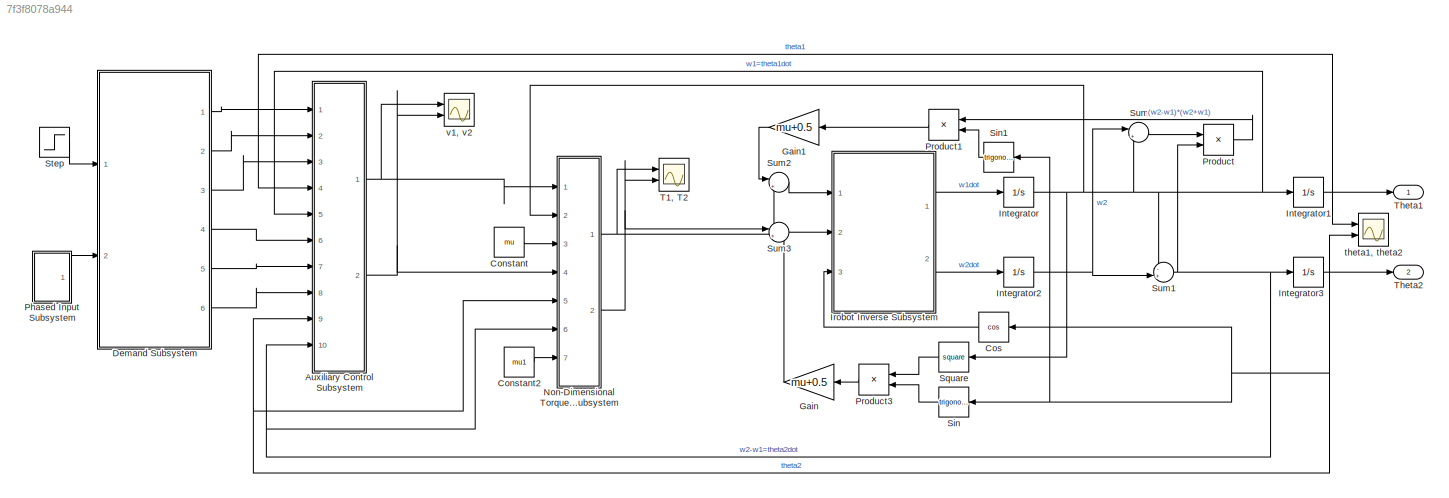
MODEL slx_7f3f8078a944
KIND model
CONFIG AbsTol = auto
CONFIG EnableMultiTasking = off
CONFIG FixedStep = auto
CONFIG MaxStep = auto
CONFIG MinStep = auto
CONFIG RelTol = 1e-3
CONFIG SampleTimeConstraint = Unconstrained
CONFIG SolverName = VariableStepAuto
CONFIG StartTime = 0.0
CONFIG StopTime = 20
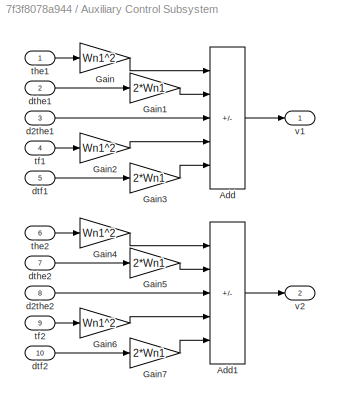
BLOCK [SubSystem] Auxiliary Control Subsystem
  Ports = [10, 2]
  RequestExecContextInheritance = off
BLOCK [Sum] Auxiliary Control Subsystem/Add
  IconShape = rectangular
  Inputs = +++--
  Ports = [5, 1]
BLOCK [Sum] Auxiliary Control Subsystem/Add1
  IconShape = rectangular
  Inputs = +++--
  Ports = [5, 1]
BLOCK [Gain] Auxiliary Control Subsystem/Gain
  Gain = Wn1^2
BLOCK [Gain] Auxiliary Control Subsystem/Gain1
  Gain = 2*Wn1
BLOCK [Gain] Auxiliary Control Subsystem/Gain2
  Gain = Wn1^2
BLOCK [Gain] Auxiliary Control Subsystem/Gain3
  Gain = 2*Wn1
BLOCK [Gain] Auxiliary Control Subsystem/Gain4
  Gain = Wn1^2
BLOCK [Gain] Auxiliary Control Subsystem/Gain5
  Gain = 2*Wn1
BLOCK [Gain] Auxiliary Control Subsystem/Gain6
  Gain = Wn1^2
BLOCK [Gain] Auxiliary Control Subsystem/Gain7
  Gain = 2*Wn1
BLOCK [Inport] Auxiliary Control Subsystem/d2the1
  Port = 3
BLOCK [Inport] Auxiliary Control Subsystem/d2the2
  Port = 8
BLOCK [Inport] Auxiliary Control Subsystem/dtf1
  Port = 5
BLOCK [Inport] Auxiliary Control Subsystem/dtf2
  Port = 10
BLOCK [Inport] Auxiliary Control Subsystem/dthe1
  Port = 2
BLOCK [Inport] Auxiliary Control Subsystem/dthe2
  Port = 7
BLOCK [Inport] Auxiliary Control Subsystem/tf1
  Port = 4
BLOCK [Inport] Auxiliary Control Subsystem/tf2
  Port = 9
BLOCK [Inport] Auxiliary Control Subsystem/the1
BLOCK [Inport] Auxiliary Control Subsystem/the2
  Port = 6
BLOCK [Outport] Auxiliary Control Subsystem/v1
BLOCK [Outport] Auxiliary Control Subsystem/v2
  Port = 2
BLOCK [Constant] Constant
  Value = mu
BLOCK [Constant] Constant2
  Value = mu1
BLOCK [Trigonometry] Cos
  Operator = cos
  Ports = [1, 1]
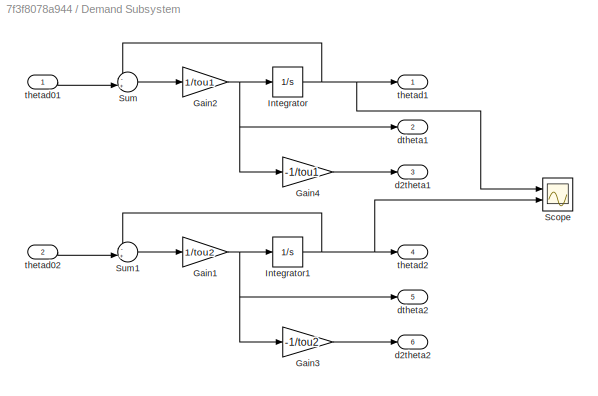
BLOCK [SubSystem] Demand Subsystem
  Ports = [2, 6]
  RequestExecContextInheritance = off
BLOCK [Gain] Demand Subsystem/Gain1
  Gain = 1/tou2
BLOCK [Gain] Demand Subsystem/Gain2
  Gain = 1/tou1
BLOCK [Gain] Demand Subsystem/Gain3
  Gain = -1/tou2
BLOCK [Gain] Demand Subsystem/Gain4
  Gain = -1/tou1
BLOCK [Integrator] Demand Subsystem/Integrator
  Ports = [1, 1]
BLOCK [Integrator] Demand Subsystem/Integrator1
  Ports = [1, 1]
BLOCK [Scope] Demand Subsystem/Scope
  Floating = off
  NumInputPorts = 2
  Ports = [2]
  ScopeSpecificationString = Simulink.scopes.TimeScopeBlockCfg('CurrentConfiguration', extmgr.ConfigurationSet(extmgr.Configuration('Core','General UI',true),extmgr.Configuration('Core','Source UI',true),extmgr.Configuration('Sources','WiredSimulink',true,'DataLoggingVariableName','ScopeData1'),extmgr.Configuration('Visuals','Time Domain',true,'SerializedDisplays',{struct('MinYLimReal','-0.5236','MaxYLimReal','4.71238','YLabe...<+1381ch>
BLOCK [Sum] Demand Subsystem/Sum
  Inputs = -+|
  Ports = [2, 1]
BLOCK [Sum] Demand Subsystem/Sum1
  Inputs = -+|
  Ports = [2, 1]
BLOCK [Outport] Demand Subsystem/d2theta1
  Port = 3
BLOCK [Outport] Demand Subsystem/d2theta2
  Port = 6
BLOCK [Outport] Demand Subsystem/dtheta1
  Port = 2
BLOCK [Outport] Demand Subsystem/dtheta2
  Port = 5
BLOCK [Inport] Demand Subsystem/thetad01
BLOCK [Inport] Demand Subsystem/thetad02
  Port = 2
BLOCK [Outport] Demand Subsystem/thetad1
BLOCK [Outport] Demand Subsystem/thetad2
  Port = 4
BLOCK [Gain] Gain
  Gain = mu+0.5
BLOCK [Gain] Gain1
  Gain = mu+0.5
BLOCK [Integrator] Integrator
  Ports = [1, 1]
BLOCK [Integrator] Integrator1
  Ports = [1, 1]
BLOCK [Integrator] Integrator2
  Ports = [1, 1]
BLOCK [Integrator] Integrator3
  Ports = [1, 1]
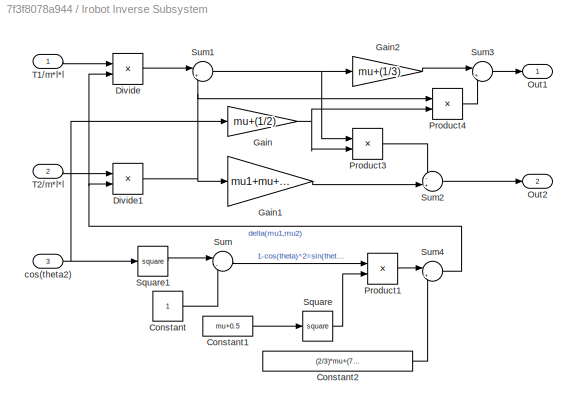
BLOCK [SubSystem] Irobot Inverse Subsystem
  Ports = [3, 2]
  RequestExecContextInheritance = off
BLOCK [Constant] Irobot Inverse Subsystem/Constant
BLOCK [Constant] Irobot Inverse Subsystem/Constant1
  Value = mu+0.5
BLOCK [Constant] Irobot Inverse Subsystem/Constant2
  Value = (2/3)*mu+(7/36)+(mu+1/3)*mu1
BLOCK [Product] Irobot Inverse Subsystem/Divide
  Inputs = */
  Ports = [2, 1]
BLOCK [Product] Irobot Inverse Subsystem/Divide1
  Inputs = */
  Ports = [2, 1]
BLOCK [Gain] Irobot Inverse Subsystem/Gain
  Gain = mu+(1/2)
BLOCK [Gain] Irobot Inverse Subsystem/Gain1
  Gain = mu1+mu+(4/3)
BLOCK [Gain] Irobot Inverse Subsystem/Gain2
  Gain = mu+(1/3)
BLOCK [Outport] Irobot Inverse Subsystem/Out1
  NameLocation = top
BLOCK [Outport] Irobot Inverse Subsystem/Out2
  NameLocation = top
  Port = 2
BLOCK [Product] Irobot Inverse Subsystem/Product1
  Ports = [2, 1]
BLOCK [Product] Irobot Inverse Subsystem/Product3
  Ports = [2, 1]
BLOCK [Product] Irobot Inverse Subsystem/Product4
  Ports = [2, 1]
BLOCK [Math] Irobot Inverse Subsystem/Square
  Operator = square
  Ports = [1, 1]
BLOCK [Math] Irobot Inverse Subsystem/Square1
  Operator = square
  Ports = [1, 1]
BLOCK [Sum] Irobot Inverse Subsystem/Sum
  Inputs = |-+
  Ports = [2, 1]
BLOCK [Sum] Irobot Inverse Subsystem/Sum1
  Inputs = |+-
  Ports = [2, 1]
BLOCK [Sum] Irobot Inverse Subsystem/Sum2
  Inputs = -+|
  Ports = [2, 1]
BLOCK [Sum] Irobot Inverse Subsystem/Sum3
  Inputs = |+-
  Ports = [2, 1]
BLOCK [Sum] Irobot Inverse Subsystem/Sum4
  Inputs = |++
  Ports = [2, 1]
BLOCK [Inport] Irobot Inverse Subsystem/T1//m*l*l
BLOCK [Inport] Irobot Inverse Subsystem/T2//m*l*l
  Port = 2
BLOCK [Inport] Irobot Inverse Subsystem/cos(theta2)
  Port = 3
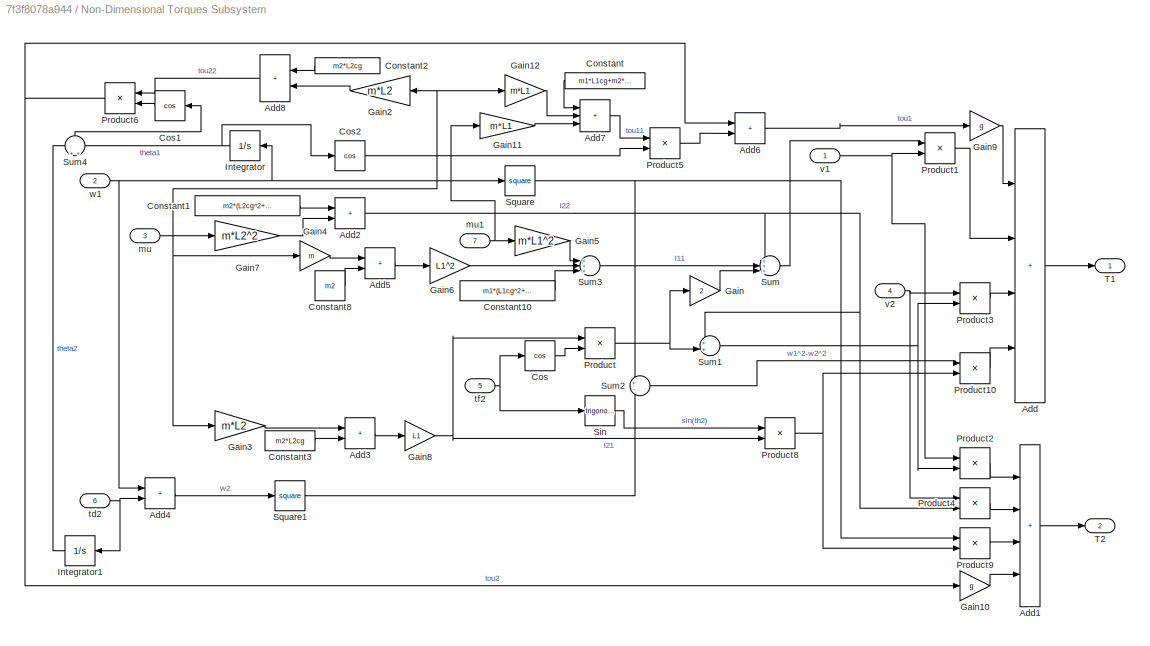
BLOCK [SubSystem] Non-Dimensional Torques Subsystem
  Ports = [7, 2]
  RequestExecContextInheritance = off
BLOCK [Sum] Non-Dimensional Torques Subsystem/Add
  IconShape = rectangular
  Inputs = ++++
  Ports = [4, 1]
BLOCK [Sum] Non-Dimensional Torques Subsystem/Add1
  IconShape = rectangular
  Inputs = ++++
  Ports = [4, 1]
BLOCK [Sum] Non-Dimensional Torques Subsystem/Add2
  IconShape = rectangular
  Ports = [2, 1]
BLOCK [Sum] Non-Dimensional Torques Subsystem/Add3
  IconShape = rectangular
  Ports = [2, 1]
BLOCK [Sum] Non-Dimensional Torques Subsystem/Add4
  IconShape = rectangular
  Ports = [2, 1]
BLOCK [Sum] Non-Dimensional Torques Subsystem/Add5
  IconShape = rectangular
  Ports = [2, 1]
BLOCK [Sum] Non-Dimensional Torques Subsystem/Add6
  IconShape = rectangular
  Ports = [2, 1]
BLOCK [Sum] Non-Dimensional Torques Subsystem/Add7
  IconShape = rectangular
  Inputs = +++
  Ports = [3, 1]
BLOCK [Sum] Non-Dimensional Torques Subsystem/Add8
  IconShape = rectangular
  Ports = [2, 1]
BLOCK [Constant] Non-Dimensional Torques Subsystem/Constant
  Value = m1*L1cg+m2*L1
BLOCK [Constant] Non-Dimensional Torques Subsystem/Constant1
  Value = m2*(L2cg^2+k2cg^2)
BLOCK [Constant] Non-Dimensional Torques Subsystem/Constant10
  Value = m1*(L1cg^2+k1cg^2)
BLOCK [Constant] Non-Dimensional Torques Subsystem/Constant2
  Value = m2*L2cg
BLOCK [Constant] Non-Dimensional Torques Subsystem/Constant3
  Value = m2*L2cg
BLOCK [Constant] Non-Dimensional Torques Subsystem/Constant8
  Value = m2
BLOCK [Trigonometry] Non-Dimensional Torques Subsystem/Cos
  Operator = cos
  Ports = [1, 1]
BLOCK [Trigonometry] Non-Dimensional Torques Subsystem/Cos1
  Operator = cos
  Ports = [1, 1]
BLOCK [Trigonometry] Non-Dimensional Torques Subsystem/Cos2
  Operator = cos
  Ports = [1, 1]
BLOCK [Gain] Non-Dimensional Torques Subsystem/Gain
  Gain = 2
BLOCK [Gain] Non-Dimensional Torques Subsystem/Gain10
  Gain = g
BLOCK [Gain] Non-Dimensional Torques Subsystem/Gain11
  Gain = m*L1
BLOCK [Gain] Non-Dimensional Torques Subsystem/Gain12
  Gain = m*L1
BLOCK [Gain] Non-Dimensional Torques Subsystem/Gain2
  Gain = m*L2
BLOCK [Gain] Non-Dimensional Torques Subsystem/Gain3
  Gain = m*L2
BLOCK [Gain] Non-Dimensional Torques Subsystem/Gain4
  Gain = m
BLOCK [Gain] Non-Dimensional Torques Subsystem/Gain5
  Gain = m*L1^2
BLOCK [Gain] Non-Dimensional Torques Subsystem/Gain6
  Gain = L1^2
BLOCK [Gain] Non-Dimensional Torques Subsystem/Gain7
  Gain = m*L2^2
BLOCK [Gain] Non-Dimensional Torques Subsystem/Gain8
  Gain = L1
BLOCK [Gain] Non-Dimensional Torques Subsystem/Gain9
  Gain = g
BLOCK [Integrator] Non-Dimensional Torques Subsystem/Integrator
  Ports = [1, 1]
BLOCK [Integrator] Non-Dimensional Torques Subsystem/Integrator1
  Ports = [1, 1]
BLOCK [Product] Non-Dimensional Torques Subsystem/Product
  Ports = [2, 1]
BLOCK [Product] Non-Dimensional Torques Subsystem/Product1
  Ports = [2, 1]
BLOCK [Product] Non-Dimensional Torques Subsystem/Product10
  Ports = [2, 1]
BLOCK [Product] Non-Dimensional Torques Subsystem/Product2
  Ports = [2, 1]
BLOCK [Product] Non-Dimensional Torques Subsystem/Product3
  Ports = [2, 1]
BLOCK [Product] Non-Dimensional Torques Subsystem/Product4
  Ports = [2, 1]
BLOCK [Product] Non-Dimensional Torques Subsystem/Product5
  Ports = [2, 1]
BLOCK [Product] Non-Dimensional Torques Subsystem/Product6
  Ports = [2, 1]
BLOCK [Product] Non-Dimensional Torques Subsystem/Product8
  Ports = [2, 1]
BLOCK [Product] Non-Dimensional Torques Subsystem/Product9
  Ports = [2, 1]
BLOCK [Trigonometry] Non-Dimensional Torques Subsystem/Sin
  Ports = [1, 1]
BLOCK [Math] Non-Dimensional Torques Subsystem/Square
  Operator = square
  Ports = [1, 1]
BLOCK [Math] Non-Dimensional Torques Subsystem/Square1
  Operator = square
  Ports = [1, 1]
BLOCK [Sum] Non-Dimensional Torques Subsystem/Sum
  Inputs = +++
  Ports = [3, 1]
BLOCK [Sum] Non-Dimensional Torques Subsystem/Sum1
  Inputs = ++|
  Ports = [2, 1]
BLOCK [Sum] Non-Dimensional Torques Subsystem/Sum2
  Inputs = +-
  Ports = [2, 1]
BLOCK [Sum] Non-Dimensional Torques Subsystem/Sum3
  Inputs = +++
  Ports = [3, 1]
BLOCK [Sum] Non-Dimensional Torques Subsystem/Sum4
  NameLocation = right
  Ports = [2, 1]
BLOCK [Outport] Non-Dimensional Torques Subsystem/T1
BLOCK [Outport] Non-Dimensional Torques Subsystem/T2
  Port = 2
BLOCK [Inport] Non-Dimensional Torques Subsystem/mu
  Port = 3
BLOCK [Inport] Non-Dimensional Torques Subsystem/mu1
  Port = 7
BLOCK [Inport] Non-Dimensional Torques Subsystem/td2
  Port = 6
BLOCK [Inport] Non-Dimensional Torques Subsystem/tf2
  Port = 5
BLOCK [Inport] Non-Dimensional Torques Subsystem/v1
BLOCK [Inport] Non-Dimensional Torques Subsystem/v2
  Port = 4
BLOCK [Inport] Non-Dimensional Torques Subsystem/w1
  Port = 2
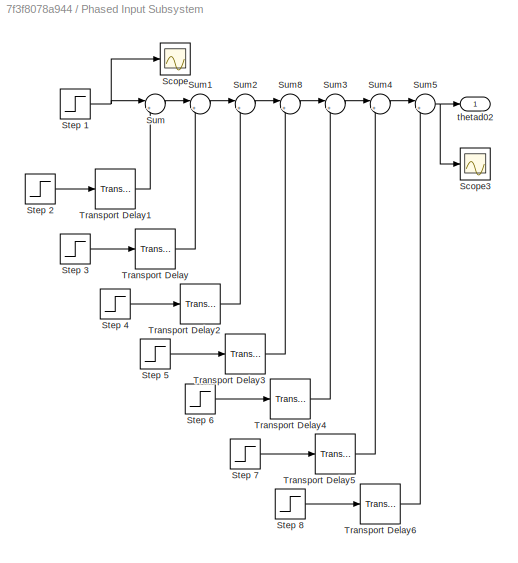
BLOCK [SubSystem] Phased Input Subsystem
  Ports = [0, 1]
  RequestExecContextInheritance = off
BLOCK [Scope] Phased Input Subsystem/Scope
  Floating = off
  NumInputPorts = 1
  Ports = [1]
  ScopeSpecificationString = Simulink.scopes.TimeScopeBlockCfg('CurrentConfiguration', extmgr.ConfigurationSet(extmgr.Configuration('Core','General UI',true),extmgr.Configuration('Core','Source UI',true),extmgr.Configuration('Sources','WiredSimulink',true,'DataLoggingVariableName','ScopeData1'),extmgr.Configuration('Visuals','Time Domain',true,'SerializedDisplays',{struct('MinYLimReal','-0.125','MaxYLimReal','1.125','YLabelRe...<+1351ch>
BLOCK [Scope] Phased Input Subsystem/Scope3
  Floating = off
  NumInputPorts = 1
  Ports = [1]
  ScopeSpecificationString = Simulink.scopes.TimeScopeBlockCfg('CurrentConfiguration', extmgr.ConfigurationSet(extmgr.Configuration('Core','General UI',true),extmgr.Configuration('Core','Source UI',true),extmgr.Configuration('Sources','WiredSimulink',true,'DataLoggingVariableName','ScopeData1'),extmgr.Configuration('Visuals','Time Domain',true,'SerializedDisplays',{struct('MinYLimReal','-0.5236','MaxYLimReal','4.71239','YLabe...<+1361ch>
BLOCK [Step] Phased Input Subsystem/Step 1
  After = 30*pi/180
  SampleTime = 0
BLOCK [Step] Phased Input Subsystem/Step 2
  After = 30*pi/180
  SampleTime = 0
BLOCK [Step] Phased Input Subsystem/Step 3
  After = 30*pi/180
  SampleTime = 0
BLOCK [Step] Phased Input Subsystem/Step 4
  After = 30*pi/180
  SampleTime = 0
BLOCK [Step] Phased Input Subsystem/Step 5
  After = 30*pi/180
  SampleTime = 0
BLOCK [Step] Phased Input Subsystem/Step 6
  After = 30*pi/180
  SampleTime = 0
BLOCK [Step] Phased Input Subsystem/Step 7
  After = 30*pi/180
  SampleTime = 0
BLOCK [Step] Phased Input Subsystem/Step 8
  After = 30*pi/180
  SampleTime = 0
BLOCK [Sum] Phased Input Subsystem/Sum
  Inputs = |++
  Ports = [2, 1]
BLOCK [Sum] Phased Input Subsystem/Sum1
  Inputs = |++
  Ports = [2, 1]
BLOCK [Sum] Phased Input Subsystem/Sum2
  Inputs = |++
  Ports = [2, 1]
BLOCK [Sum] Phased Input Subsystem/Sum3
  Inputs = |++
  Ports = [2, 1]
BLOCK [Sum] Phased Input Subsystem/Sum4
  Inputs = |++
  Ports = [2, 1]
BLOCK [Sum] Phased Input Subsystem/Sum5
  Inputs = |++
  Ports = [2, 1]
BLOCK [Sum] Phased Input Subsystem/Sum8
  Inputs = |++
  Ports = [2, 1]
BLOCK [TransportDelay] Phased Input Subsystem/Transport Delay
  DelayTime = 2
  Ports = [1, 1]
BLOCK [TransportDelay] Phased Input Subsystem/Transport Delay1
  Ports = [1, 1]
BLOCK [TransportDelay] Phased Input Subsystem/Transport Delay2
  DelayTime = 3
  Ports = [1, 1]
BLOCK [TransportDelay] Phased Input Subsystem/Transport Delay3
  DelayTime = 4
  Ports = [1, 1]
BLOCK [TransportDelay] Phased Input Subsystem/Transport Delay4
  DelayTime = 5
  Ports = [1, 1]
BLOCK [TransportDelay] Phased Input Subsystem/Transport Delay5
  DelayTime = 6
  Ports = [1, 1]
BLOCK [TransportDelay] Phased Input Subsystem/Transport Delay6
  DelayTime = 7
  Ports = [1, 1]
BLOCK [Outport] Phased Input Subsystem/thetad02
BLOCK [Product] Product
  Ports = [2, 1]
BLOCK [Product] Product1
  Ports = [2, 1]
BLOCK [Product] Product3
  Ports = [2, 1]
BLOCK [Trigonometry] Sin
  Ports = [1, 1]
BLOCK [Trigonometry] Sin1
  Ports = [1, 1]
BLOCK [Math] Square
  Operator = square
  Ports = [1, 1]
BLOCK [Step] Step
  After = 6.87*pi/180
  SampleTime = 0
BLOCK [Sum] Sum
  Inputs = |++
  Ports = [2, 1]
BLOCK [Sum] Sum1
  Inputs = -+|
  Ports = [2, 1]
BLOCK [Sum] Sum2
  Inputs = |++
  Ports = [2, 1]
BLOCK [Sum] Sum3
  Inputs = |+-
  Ports = [2, 1]
BLOCK [Scope] T1, T2
  Floating = off
  NumInputPorts = 2
  Ports = [2]
  ScopeSpecificationString = Simulink.scopes.TimeScopeBlockCfg('CurrentConfiguration', extmgr.ConfigurationSet(extmgr.Configuration('Core','General UI',true),extmgr.Configuration('Core','Source UI',true),extmgr.Configuration('Sources','WiredSimulink',true,'DataLoggingVariableName','ScopeData1'),extmgr.Configuration('Visuals','Time Domain',true,'SerializedDisplays',{struct('MinYLimReal','-6.43003','MaxYLimReal','18.53246','YLa...<+1884ch>
BLOCK [Outport] Theta1
BLOCK [Outport] Theta2
  Port = 2
BLOCK [Scope] theta1, theta2
  Floating = off
  NumInputPorts = 2
  Ports = [2]
  ScopeSpecificationString = Simulink.scopes.TimeScopeBlockCfg('CurrentConfiguration', extmgr.ConfigurationSet(extmgr.Configuration('Core','General UI',true),extmgr.Configuration('Core','Source UI',true),extmgr.Configuration('Sources','WiredSimulink',true),extmgr.Configuration('Visuals','Time Domain',true,'SerializedDisplays',{struct('MinYLimReal','-0.52359','MaxYLimReal','4.71231','YLabelReal','','MinYLimMag','0.00000','MaxY...<+1390ch>
BLOCK [Scope] v1, v2
  Floating = off
  NumInputPorts = 2
  Ports = [2]
  ScopeSpecificationString = Simulink.scopes.TimeScopeBlockCfg('CurrentConfiguration', extmgr.ConfigurationSet(extmgr.Configuration('Core','General UI',true),extmgr.Configuration('Core','Source UI',true),extmgr.Configuration('Sources','WiredSimulink',true,'DataLoggingVariableName','ScopeData3'),extmgr.Configuration('Visuals','Time Domain',true,'SerializedDisplays',{struct('MinYLimReal','-0.28671','MaxYLimReal','0.61363','YLab...<+1478ch>
LINE Auxiliary Control Subsystem/Add1:1 -> Auxiliary Control Subsystem/v2:1
LINE Auxiliary Control Subsystem/Add:1 -> Auxiliary Control Subsystem/v1:1
LINE Auxiliary Control Subsystem/Gain1:1 -> Auxiliary Control Subsystem/Add:2
LINE Auxiliary Control Subsystem/Gain2:1 -> Auxiliary Control Subsystem/Add:4
LINE Auxiliary Control Subsystem/Gain3:1 -> Auxiliary Control Subsystem/Add:5
LINE Auxiliary Control Subsystem/Gain4:1 -> Auxiliary Control Subsystem/Add1:1
LINE Auxiliary Control Subsystem/Gain5:1 -> Auxiliary Control Subsystem/Add1:2
LINE Auxiliary Control Subsystem/Gain6:1 -> Auxiliary Control Subsystem/Add1:4
LINE Auxiliary Control Subsystem/Gain7:1 -> Auxiliary Control Subsystem/Add1:5
LINE Auxiliary Control Subsystem/Gain:1 -> Auxiliary Control Subsystem/Add:1
LINE Auxiliary Control Subsystem/d2the1:1 -> Auxiliary Control Subsystem/Add:3
LINE Auxiliary Control Subsystem/d2the2:1 -> Auxiliary Control Subsystem/Add1:3
LINE Auxiliary Control Subsystem/dtf1:1 -> Auxiliary Control Subsystem/Gain3:1
LINE Auxiliary Control Subsystem/dtf2:1 -> Auxiliary Control Subsystem/Gain7:1
LINE Auxiliary Control Subsystem/dthe1:1 -> Auxiliary Control Subsystem/Gain1:1
LINE Auxiliary Control Subsystem/dthe2:1 -> Auxiliary Control Subsystem/Gain5:1
LINE Auxiliary Control Subsystem/tf1:1 -> Auxiliary Control Subsystem/Gain2:1
LINE Auxiliary Control Subsystem/tf2:1 -> Auxiliary Control Subsystem/Gain6:1
LINE Auxiliary Control Subsystem/the1:1 -> Auxiliary Control Subsystem/Gain:1
LINE Auxiliary Control Subsystem/the2:1 -> Auxiliary Control Subsystem/Gain4:1
NET Auxiliary Control Subsystem:1 -> Non-Dimensional Torques Subsystem:1, v1, v2:1
NET Auxiliary Control Subsystem:2 -> Non-Dimensional Torques Subsystem:4, v1, v2:2
LINE Constant2:1 -> Non-Dimensional Torques Subsystem:7
LINE Constant:1 -> Non-Dimensional Torques Subsystem:3
LINE Cos:1 -> Irobot Inverse Subsystem:3
NET Demand Subsystem/Gain1:1 -> Demand Subsystem/Gain3:1, Demand Subsystem/Integrator1:1, Demand Subsystem/dtheta2:1
NET Demand Subsystem/Gain2:1 -> Demand Subsystem/Gain4:1, Demand Subsystem/Integrator:1, Demand Subsystem/dtheta1:1
LINE Demand Subsystem/Gain3:1 -> Demand Subsystem/d2theta2:1
LINE Demand Subsystem/Gain4:1 -> Demand Subsystem/d2theta1:1
NET Demand Subsystem/Integrator1:1 -> Demand Subsystem/Scope:2, Demand Subsystem/Sum1:1, Demand Subsystem/thetad2:1
NET Demand Subsystem/Integrator:1 -> Demand Subsystem/Scope:1, Demand Subsystem/Sum:1, Demand Subsystem/thetad1:1
LINE Demand Subsystem/Sum1:1 -> Demand Subsystem/Gain1:1
LINE Demand Subsystem/Sum:1 -> Demand Subsystem/Gain2:1
LINE Demand Subsystem/thetad01:1 -> Demand Subsystem/Sum:2
LINE Demand Subsystem/thetad02:1 -> Demand Subsystem/Sum1:2
LINE Demand Subsystem:1 -> Auxiliary Control Subsystem:1
LINE Demand Subsystem:2 -> Auxiliary Control Subsystem:2
LINE Demand Subsystem:3 -> Auxiliary Control Subsystem:3
LINE Demand Subsystem:4 -> Auxiliary Control Subsystem:6
LINE Demand Subsystem:5 -> Auxiliary Control Subsystem:7
LINE Demand Subsystem:6 -> Auxiliary Control Subsystem:8
LINE Gain1:1 -> Sum2:1
LINE Gain:1 -> Sum3:2
NET Integrator1:1 -> Auxiliary Control Subsystem:4, Theta1:1, theta1, theta2:1
NET Integrator2:1 -> Sum1:2, Sum:1
NET Integrator3:1 -> Auxiliary Control Subsystem:9, Cos:1, Non-Dimensional Torques Subsystem:5, Sin1:1, Sin:1, Theta2:1, theta1, theta2:2
NET Integrator:1 -> Auxiliary Control Subsystem:5, Integrator1:1, Non-Dimensional Torques Subsystem:2, Square:1, Sum1:1, Sum:2
LINE Irobot Inverse Subsystem/Constant1:1 -> Irobot Inverse Subsystem/Square:1
LINE Irobot Inverse Subsystem/Constant2:1 -> Irobot Inverse Subsystem/Sum4:2
LINE Irobot Inverse Subsystem/Constant:1 -> Irobot Inverse Subsystem/Sum:2
NET Irobot Inverse Subsystem/Divide1:1 -> Irobot Inverse Subsystem/Gain1:1, Irobot Inverse Subsystem/Product4:1, Irobot Inverse Subsystem/Sum1:2
LINE Irobot Inverse Subsystem/Divide:1 -> Irobot Inverse Subsystem/Sum1:1
LINE Irobot Inverse Subsystem/Gain1:1 -> Irobot Inverse Subsystem/Sum2:2
LINE Irobot Inverse Subsystem/Gain2:1 -> Irobot Inverse Subsystem/Sum3:1
NET Irobot Inverse Subsystem/Gain:1 -> Irobot Inverse Subsystem/Product3:2, Irobot Inverse Subsystem/Product4:2
LINE Irobot Inverse Subsystem/Product1:1 -> Irobot Inverse Subsystem/Sum4:1
LINE Irobot Inverse Subsystem/Product3:1 -> Irobot Inverse Subsystem/Sum2:1
LINE Irobot Inverse Subsystem/Product4:1 -> Irobot Inverse Subsystem/Sum3:2
LINE Irobot Inverse Subsystem/Square1:1 -> Irobot Inverse Subsystem/Sum:1
LINE Irobot Inverse Subsystem/Square:1 -> Irobot Inverse Subsystem/Product1:2
NET Irobot Inverse Subsystem/Sum1:1 -> Irobot Inverse Subsystem/Gain2:1, Irobot Inverse Subsystem/Product3:1
LINE Irobot Inverse Subsystem/Sum2:1 -> Irobot Inverse Subsystem/Out2:1
LINE Irobot Inverse Subsystem/Sum3:1 -> Irobot Inverse Subsystem/Out1:1
NET Irobot Inverse Subsystem/Sum4:1 -> Irobot Inverse Subsystem/Divide1:2, Irobot Inverse Subsystem/Divide:2
LINE Irobot Inverse Subsystem/Sum:1 -> Irobot Inverse Subsystem/Product1:1
LINE Irobot Inverse Subsystem/T1//m*l*l:1 -> Irobot Inverse Subsystem/Divide:1
LINE Irobot Inverse Subsystem/T2//m*l*l:1 -> Irobot Inverse Subsystem/Divide1:1
NET Irobot Inverse Subsystem/cos(theta2):1 -> Irobot Inverse Subsystem/Gain:1, Irobot Inverse Subsystem/Square1:1
LINE Irobot Inverse Subsystem:1 -> Integrator:1
LINE Irobot Inverse Subsystem:2 -> Integrator2:1
LINE Non-Dimensional Torques Subsystem/Add1:1 -> Non-Dimensional Torques Subsystem/T2:1
NET Non-Dimensional Torques Subsystem/Add2:1 -> Non-Dimensional Torques Subsystem/Product4:2, Non-Dimensional Torques Subsystem/Sum1:1, Non-Dimensional Torques Subsystem/Sum:1
LINE Non-Dimensional Torques Subsystem/Add3:1 -> Non-Dimensional Torques Subsystem/Gain8:1
LINE Non-Dimensional Torques Subsystem/Add4:1 -> Non-Dimensional Torques Subsystem/Square1:1
LINE Non-Dimensional Torques Subsystem/Add5:1 -> Non-Dimensional Torques Subsystem/Gain6:1
LINE Non-Dimensional Torques Subsystem/Add6:1 -> Non-Dimensional Torques Subsystem/Gain9:1
LINE Non-Dimensional Torques Subsystem/Add7:1 -> Non-Dimensional Torques Subsystem/Product5:1
LINE Non-Dimensional Torques Subsystem/Add8:1 -> Non-Dimensional Torques Subsystem/Product6:1
LINE Non-Dimensional Torques Subsystem/Add:1 -> Non-Dimensional Torques Subsystem/T1:1
LINE Non-Dimensional Torques Subsystem/Constant10:1 -> Non-Dimensional Torques Subsystem/Sum3:3
LINE Non-Dimensional Torques Subsystem/Constant1:1 -> Non-Dimensional Torques Subsystem/Add2:1
LINE Non-Dimensional Torques Subsystem/Constant2:1 -> Non-Dimensional Torques Subsystem/Add8:1
LINE Non-Dimensional Torques Subsystem/Constant3:1 -> Non-Dimensional Torques Subsystem/Add3:2
LINE Non-Dimensional Torques Subsystem/Constant8:1 -> Non-Dimensional Torques Subsystem/Add5:2
LINE Non-Dimensional Torques Subsystem/Constant:1 -> Non-Dimensional Torques Subsystem/Add7:1
LINE Non-Dimensional Torques Subsystem/Cos1:1 -> Non-Dimensional Torques Subsystem/Product6:2
LINE Non-Dimensional Torques Subsystem/Cos2:1 -> Non-Dimensional Torques Subsystem/Product5:2
LINE Non-Dimensional Torques Subsystem/Cos:1 -> Non-Dimensional Torques Subsystem/Product:2
LINE Non-Dimensional Torques Subsystem/Gain10:1 -> Non-Dimensional Torques Subsystem/Add1:4
LINE Non-Dimensional Torques Subsystem/Gain11:1 -> Non-Dimensional Torques Subsystem/Add7:3
LINE Non-Dimensional Torques Subsystem/Gain12:1 -> Non-Dimensional Torques Subsystem/Add7:2
LINE Non-Dimensional Torques Subsystem/Gain2:1 -> Non-Dimensional Torques Subsystem/Add8:2
LINE Non-Dimensional Torques Subsystem/Gain3:1 -> Non-Dimensional Torques Subsystem/Add3:1
LINE Non-Dimensional Torques Subsystem/Gain4:1 -> Non-Dimensional Torques Subsystem/Add5:1
LINE Non-Dimensional Torques Subsystem/Gain5:1 -> Non-Dimensional Torques Subsystem/Sum3:1
LINE Non-Dimensional Torques Subsystem/Gain6:1 -> Non-Dimensional Torques Subsystem/Sum3:2
LINE Non-Dimensional Torques Subsystem/Gain7:1 -> Non-Dimensional Torques Subsystem/Add2:2
NET Non-Dimensional Torques Subsystem/Gain8:1 -> Non-Dimensional Torques Subsystem/Product8:2, Non-Dimensional Torques Subsystem/Product:1
LINE Non-Dimensional Torques Subsystem/Gain9:1 -> Non-Dimensional Torques Subsystem/Add:1
LINE Non-Dimensional Torques Subsystem/Gain:1 -> Non-Dimensional Torques Subsystem/Sum:3
LINE Non-Dimensional Torques Subsystem/Integrator1:1 -> Non-Dimensional Torques Subsystem/Sum4:1
NET Non-Dimensional Torques Subsystem/Integrator:1 -> Non-Dimensional Torques Subsystem/Cos2:1, Non-Dimensional Torques Subsystem/Sum4:2
LINE Non-Dimensional Torques Subsystem/Product10:1 -> Non-Dimensional Torques Subsystem/Add:4
LINE Non-Dimensional Torques Subsystem/Product1:1 -> Non-Dimensional Torques Subsystem/Add:2
LINE Non-Dimensional Torques Subsystem/Product2:1 -> Non-Dimensional Torques Subsystem/Add1:1
LINE Non-Dimensional Torques Subsystem/Product3:1 -> Non-Dimensional Torques Subsystem/Add:3
LINE Non-Dimensional Torques Subsystem/Product4:1 -> Non-Dimensional Torques Subsystem/Add1:2
LINE Non-Dimensional Torques Subsystem/Product5:1 -> Non-Dimensional Torques Subsystem/Add6:2
NET Non-Dimensional Torques Subsystem/Product6:1 -> Non-Dimensional Torques Subsystem/Add6:1, Non-Dimensional Torques Subsystem/Gain10:1
NET Non-Dimensional Torques Subsystem/Product8:1 -> Non-Dimensional Torques Subsystem/Product10:2, Non-Dimensional Torques Subsystem/Product9:2
LINE Non-Dimensional Torques Subsystem/Product9:1 -> Non-Dimensional Torques Subsystem/Add1:3
NET Non-Dimensional Torques Subsystem/Product:1 -> Non-Dimensional Torques Subsystem/Gain:1, Non-Dimensional Torques Subsystem/Sum1:2
LINE Non-Dimensional Torques Subsystem/Sin:1 -> Non-Dimensional Torques Subsystem/Product8:1
LINE Non-Dimensional Torques Subsystem/Square1:1 -> Non-Dimensional Torques Subsystem/Sum2:2
NET Non-Dimensional Torques Subsystem/Square:1 -> Non-Dimensional Torques Subsystem/Product9:1, Non-Dimensional Torques Subsystem/Sum2:1
NET Non-Dimensional Torques Subsystem/Sum1:1 -> Non-Dimensional Torques Subsystem/Product2:2, Non-Dimensional Torques Subsystem/Product3:2
LINE Non-Dimensional Torques Subsystem/Sum2:1 -> Non-Dimensional Torques Subsystem/Product10:1
LINE Non-Dimensional Torques Subsystem/Sum3:1 -> Non-Dimensional Torques Subsystem/Sum:2
LINE Non-Dimensional Torques Subsystem/Sum4:1 -> Non-Dimensional Torques Subsystem/Cos1:1
LINE Non-Dimensional Torques Subsystem/Sum:1 -> Non-Dimensional Torques Subsystem/Product1:1
NET Non-Dimensional Torques Subsystem/mu1:1 -> Non-Dimensional Torques Subsystem/Gain11:1, Non-Dimensional Torques Subsystem/Gain5:1
NET Non-Dimensional Torques Subsystem/mu:1 -> Non-Dimensional Torques Subsystem/Gain12:1, Non-Dimensional Torques Subsystem/Gain2:1, Non-Dimensional Torques Subsystem/Gain3:1, Non-Dimensional Torques Subsystem/Gain4:1, Non-Dimensional Torques Subsystem/Gain7:1
NET Non-Dimensional Torques Subsystem/td2:1 -> Non-Dimensional Torques Subsystem/Add4:2, Non-Dimensional Torques Subsystem/Integrator1:1
NET Non-Dimensional Torques Subsystem/tf2:1 -> Non-Dimensional Torques Subsystem/Cos:1, Non-Dimensional Torques Subsystem/Sin:1
NET Non-Dimensional Torques Subsystem/v1:1 -> Non-Dimensional Torques Subsystem/Product1:2, Non-Dimensional Torques Subsystem/Product2:1
NET Non-Dimensional Torques Subsystem/v2:1 -> Non-Dimensional Torques Subsystem/Product3:1, Non-Dimensional Torques Subsystem/Product4:1
NET Non-Dimensional Torques Subsystem/w1:1 -> Non-Dimensional Torques Subsystem/Add4:1, Non-Dimensional Torques Subsystem/Integrator:1, Non-Dimensional Torques Subsystem/Square:1
NET Non-Dimensional Torques Subsystem:1 -> Sum2:2, T1, T2:1
NET Non-Dimensional Torques Subsystem:2 -> Sum3:1, T1, T2:2
NET Phased Input Subsystem/Step 1:1 -> Phased Input Subsystem/Scope:1, Phased Input Subsystem/Sum:1
LINE Phased Input Subsystem/Step 2:1 -> Phased Input Subsystem/Transport Delay1:1
LINE Phased Input Subsystem/Step 3:1 -> Phased Input Subsystem/Transport Delay:1
LINE Phased Input Subsystem/Step 4:1 -> Phased Input Subsystem/Transport Delay2:1
LINE Phased Input Subsystem/Step 5:1 -> Phased Input Subsystem/Transport Delay3:1
LINE Phased Input Subsystem/Step 6:1 -> Phased Input Subsystem/Transport Delay4:1
LINE Phased Input Subsystem/Step 7:1 -> Phased Input Subsystem/Transport Delay5:1
LINE Phased Input Subsystem/Step 8:1 -> Phased Input Subsystem/Transport Delay6:1
LINE Phased Input Subsystem/Sum1:1 -> Phased Input Subsystem/Sum2:1
LINE Phased Input Subsystem/Sum2:1 -> Phased Input Subsystem/Sum8:1
LINE Phased Input Subsystem/Sum3:1 -> Phased Input Subsystem/Sum4:1
LINE Phased Input Subsystem/Sum4:1 -> Phased Input Subsystem/Sum5:1
NET Phased Input Subsystem/Sum5:1 -> Phased Input Subsystem/Scope3:1, Phased Input Subsystem/thetad02:1
LINE Phased Input Subsystem/Sum8:1 -> Phased Input Subsystem/Sum3:1
LINE Phased Input Subsystem/Sum:1 -> Phased Input Subsystem/Sum1:1
LINE Phased Input Subsystem/Transport Delay1:1 -> Phased Input Subsystem/Sum:2
LINE Phased Input Subsystem/Transport Delay2:1 -> Phased Input Subsystem/Sum2:2
LINE Phased Input Subsystem/Transport Delay3:1 -> Phased Input Subsystem/Sum8:2
LINE Phased Input Subsystem/Transport Delay4:1 -> Phased Input Subsystem/Sum3:2
LINE Phased Input Subsystem/Transport Delay5:1 -> Phased Input Subsystem/Sum4:2
LINE Phased Input Subsystem/Transport Delay6:1 -> Phased Input Subsystem/Sum5:2
LINE Phased Input Subsystem/Transport Delay:1 -> Phased Input Subsystem/Sum1:2
LINE Phased Input Subsystem:1 -> Demand Subsystem:2
LINE Product1:1 -> Gain1:1
LINE Product3:1 -> Gain:1
LINE Product:1 -> Product1:1
LINE Sin1:1 -> Product1:2
LINE Sin:1 -> Product3:2
LINE Square:1 -> Product3:1
LINE Step:1 -> Demand Subsystem:1
NET Sum1:1 -> Auxiliary Control Subsystem:10, Integrator3:1, Non-Dimensional Torques Subsystem:6, Product:2
LINE Sum2:1 -> Irobot Inverse Subsystem:1
LINE Sum3:1 -> Irobot Inverse Subsystem:2
LINE Sum:1 -> Product:1
note: NET lines group one-source signal fan-out (src -> all destinations, sorted); 1:1 wires keep LINE
